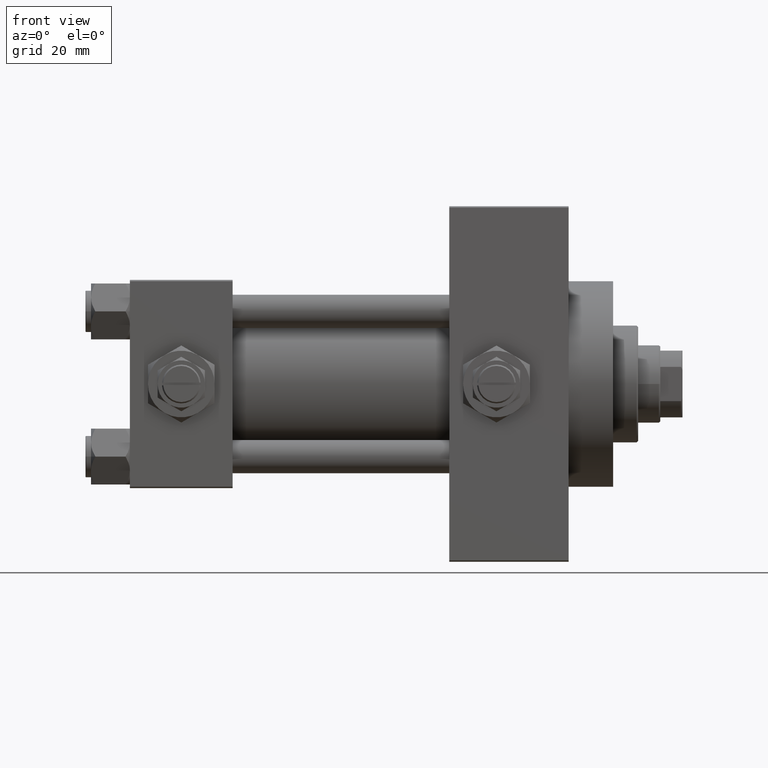
[diagram: clean part render]
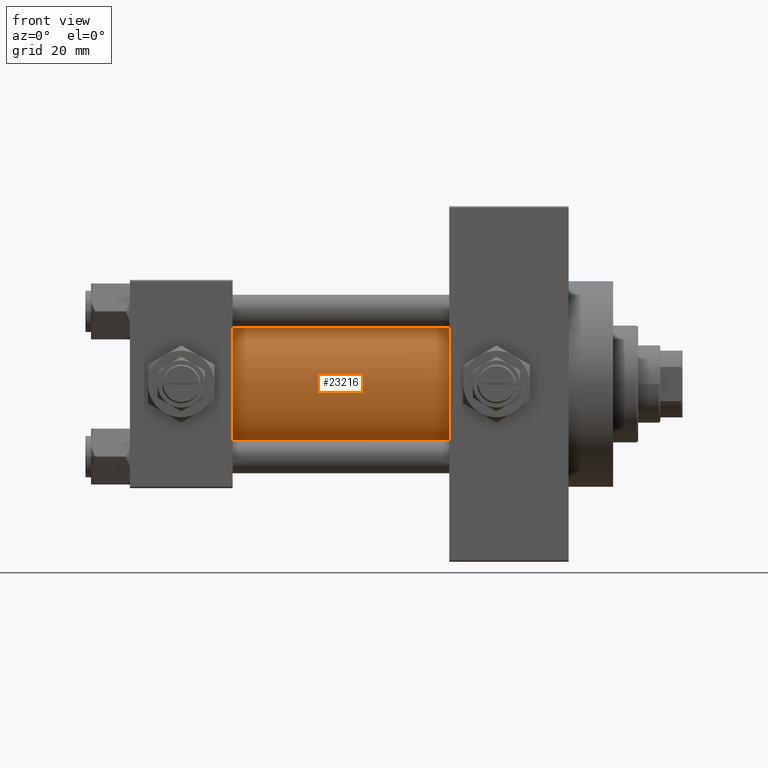
[diagram: same view with one face highlighted and labeled with its STEP entity id]
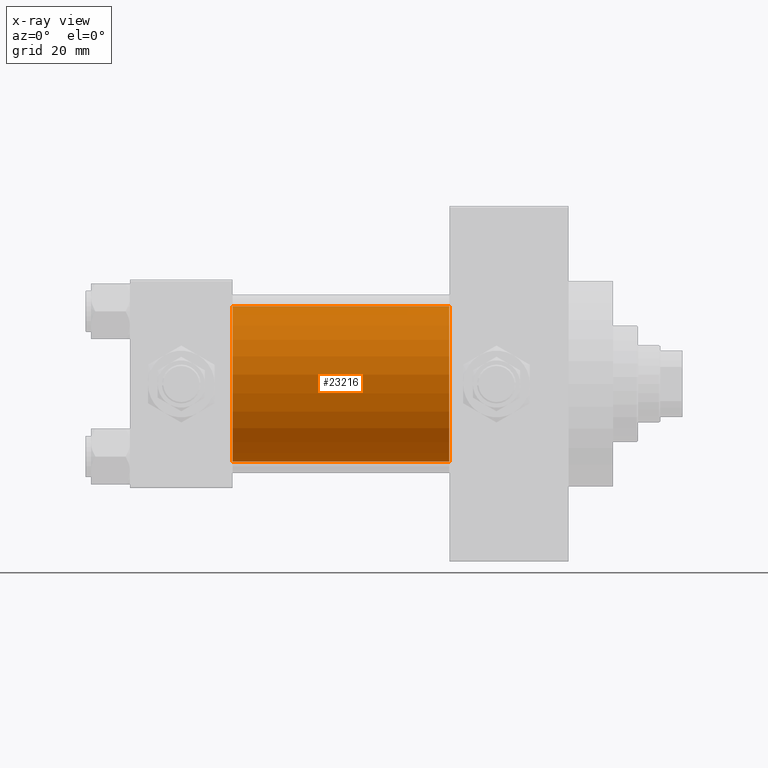
[diagram: x-ray of the same camera — body ghosted, the highlighted face saturated]
A machine part, front view. The second image highlights one B-rep face of the part: STEP entity #23216.
The next image is the same camera in x-ray: the body ghosted, the highlighted face saturated — about 2% of this face is hidden behind the body in this view.
In plain terms, the highlighted cylindrical surface (partial cylindrical patch) has radius 28 mm, axis along (-1, -0, -0).
Its self-contained STEP definition (entity closure, byte-faithful):
#865 = DIRECTION ( 'NONE',  ( -1.000000000000000000, -0.000000000000000000, -0.000000000000000000 ) ) ;
#904 = DIRECTION ( 'NONE',  ( 1.000000000000000000, -0.000000000000000000, 0.000000000000000000 ) ) ;
#1641 = CIRCLE ( 'NONE', #33492, 28.00000000000000000 ) ;
#2038 = DIRECTION ( 'NONE',  ( 0.000000000000000000, 0.000000000000000000, -1.000000000000000000 ) ) ;
#4012 = LINE ( 'NONE', #41656, #25107 ) ;
#4523 = ORIENTED_EDGE ( 'NONE', *, *, #36542, .F. ) ;
#10680 = EDGE_CURVE ( 'NONE', #15526, #47495, #20910, .T. ) ;
#15526 = VERTEX_POINT ( 'NONE', #26444 ) ;
#15573 = EDGE_CURVE ( 'NONE', #15526, #33995, #4012, .T. ) ;
#16083 = LINE ( 'NONE', #20056, #30791 ) ;
#17248 = CARTESIAN_POINT ( 'NONE',  ( 114.9999999999999858, -2.602085213965210642E-15, 0.000000000000000000 ) ) ;
#17623 = EDGE_LOOP ( 'NONE', ( #4523, #42454, #38448, #43855 ) ) ;
#19842 = CARTESIAN_POINT ( 'NONE',  ( 37.00000000000000711, -2.602085213965210642E-15, 0.000000000000000000 ) ) ;
#20056 = CARTESIAN_POINT ( 'NONE',  ( 114.9999999999999858, 8.269258236473784371E-16, -28.00000000000000000 ) ) ;
#20624 = CYLINDRICAL_SURFACE ( 'NONE', #26812, 28.00000000000000000 ) ;
#20910 = CIRCLE ( 'NONE', #21736, 28.00000000000000000 ) ;
#21451 = CARTESIAN_POINT ( 'NONE',  ( 37.00000000000000711, 8.269258236473784371E-16, -28.00000000000000000 ) ) ;
#21736 = AXIS2_PLACEMENT_3D ( 'NONE', #17248, #24716, #2038 ) ;
#21963 = CARTESIAN_POINT ( 'NONE',  ( 37.00000000000000711, -2.602085213965210642E-15, 28.00000000000000000 ) ) ;
#22735 = CARTESIAN_POINT ( 'NONE',  ( 114.9999999999999858, 8.269258236473784371E-16, -28.00000000000000000 ) ) ;
#23216 = ADVANCED_FACE ( 'NONE', ( #39095 ), #20624, .T. ) ;
#24716 = DIRECTION ( 'NONE',  ( 1.000000000000000000, 0.000000000000000000, 0.000000000000000000 ) ) ;
#25107 = VECTOR ( 'NONE', #45897, 1000.000000000000000 ) ;
#25530 = DIRECTION ( 'NONE',  ( 0.000000000000000000, 0.000000000000000000, 1.000000000000000000 ) ) ;
#26444 = CARTESIAN_POINT ( 'NONE',  ( 114.9999999999999858, -2.602085213965210642E-15, 28.00000000000000000 ) ) ;
#26812 = AXIS2_PLACEMENT_3D ( 'NONE', #39340, #32105, #25530 ) ;
#30791 = VECTOR ( 'NONE', #865, 1000.000000000000000 ) ;
#31319 = DIRECTION ( 'NONE',  ( 0.000000000000000000, 0.000000000000000000, 1.000000000000000000 ) ) ;
#32105 = DIRECTION ( 'NONE',  ( -1.000000000000000000, -0.000000000000000000, -0.000000000000000000 ) ) ;
#33492 = AXIS2_PLACEMENT_3D ( 'NONE', #19842, #904, #31319 ) ;
#33995 = VERTEX_POINT ( 'NONE', #21963 ) ;
#36542 = EDGE_CURVE ( 'NONE', #47495, #47649, #16083, .T. ) ;
#38448 = ORIENTED_EDGE ( 'NONE', *, *, #15573, .T. ) ;
#39095 = FACE_OUTER_BOUND ( 'NONE', #17623, .T. ) ;
#39340 = CARTESIAN_POINT ( 'NONE',  ( 114.9999999999999858, -2.602085213965210642E-15, 0.000000000000000000 ) ) ;
#41656 = CARTESIAN_POINT ( 'NONE',  ( 114.9999999999999858, -2.602085213965210642E-15, 28.00000000000000000 ) ) ;
#42454 = ORIENTED_EDGE ( 'NONE', *, *, #10680, .F. ) ;
#43855 = ORIENTED_EDGE ( 'NONE', *, *, #45684, .T. ) ;
#45684 = EDGE_CURVE ( 'NONE', #33995, #47649, #1641, .T. ) ;
#45897 = DIRECTION ( 'NONE',  ( -1.000000000000000000, -0.000000000000000000, -0.000000000000000000 ) ) ;
#47495 = VERTEX_POINT ( 'NONE', #22735 ) ;
#47649 = VERTEX_POINT ( 'NONE', #21451 ) ;